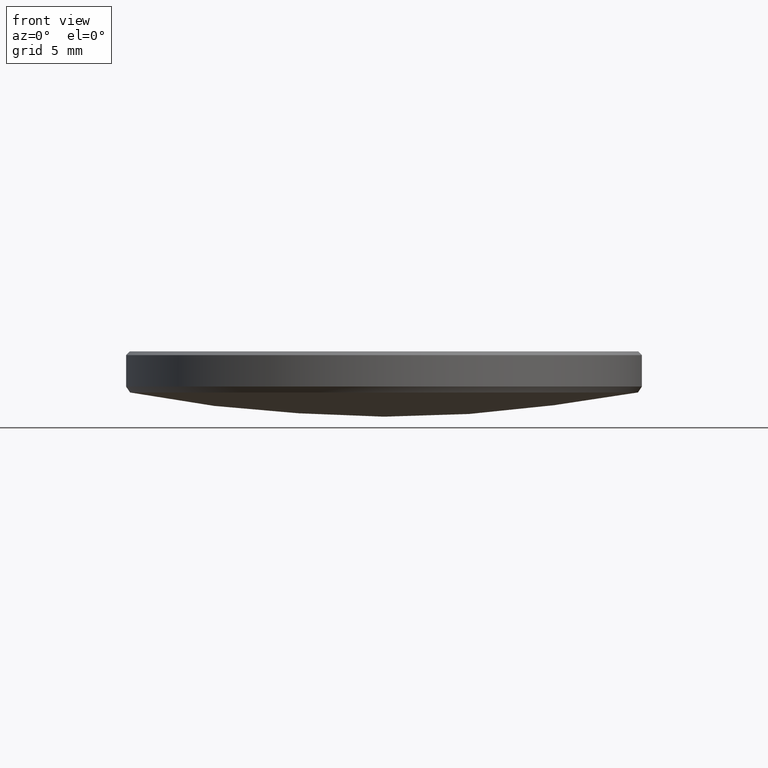
[diagram: clean part render]
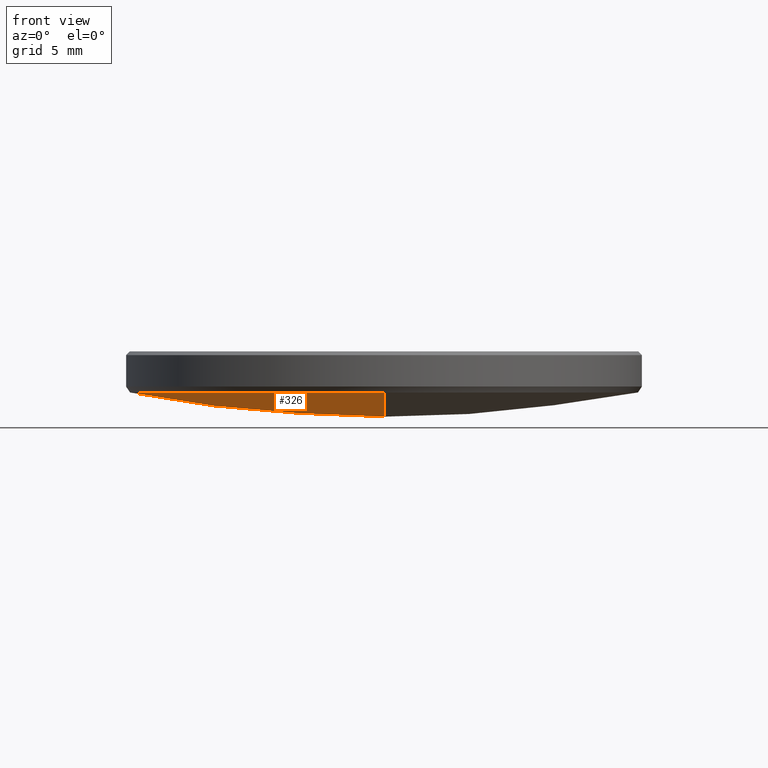
[diagram: same view with one face highlighted and labeled with its STEP entity id]
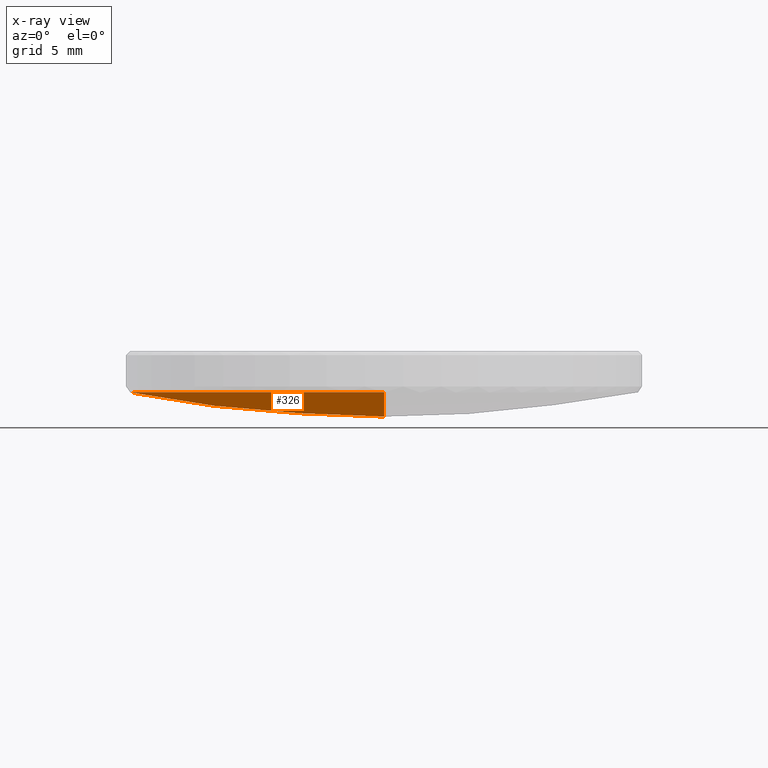
[diagram: x-ray of the same camera — body ghosted, the highlighted face saturated]
A machine part, front view. The second image highlights one B-rep face of the part: STEP entity #326.
The next image is the same camera in x-ray: the body ghosted, the highlighted face saturated — about 0% of this face is hidden behind the body in this view.
In plain terms, the highlighted spherical surface has radius 66.15 mm.
Its self-contained STEP definition (entity closure, byte-faithful):
#5 = CARTESIAN_POINT ( 'NONE',  ( 0.000000000000000000, 12.50395849586554675, 3.961956115965656444 ) ) ;
#8 = VERTEX_POINT ( 'NONE', #5 ) ;
#23 = AXIS2_PLACEMENT_3D ( 'NONE', #91, #191, #273 ) ;
#35 = DIRECTION ( 'NONE',  ( 1.000000000000000000, 0.000000000000000000, 0.000000000000000000 ) ) ;
#47 = AXIS2_PLACEMENT_3D ( 'NONE', #220, #249, #254 ) ;
#67 = FACE_OUTER_BOUND ( 'NONE', #225, .T. ) ;
#72 = ORIENTED_EDGE ( 'NONE', *, *, #103, .F. ) ;
#91 = CARTESIAN_POINT ( 'NONE',  ( 0.000000000000000000, 0.000000000000000000, 68.91943083545942272 ) ) ;
#92 = EDGE_CURVE ( 'NONE', #94, #302, #95, .T. ) ;
#94 = VERTEX_POINT ( 'NONE', #224 ) ;
#95 = CIRCLE ( 'NONE', #47, 66.15000000000000568 ) ;
#103 = EDGE_CURVE ( 'NONE', #94, #8, #283, .T. ) ;
#108 = ORIENTED_EDGE ( 'NONE', *, *, #92, .T. ) ;
#127 = AXIS2_PLACEMENT_3D ( 'NONE', #244, #136, #35 ) ;
#136 = DIRECTION ( 'NONE',  ( 0.000000000000000000, 0.000000000000000000, -1.000000000000000000 ) ) ;
#144 = ORIENTED_EDGE ( 'NONE', *, *, #198, .T. ) ;
#146 = DIRECTION ( 'NONE',  ( 0.000000000000000000, 0.000000000000000000, -1.000000000000000000 ) ) ;
#150 = ORIENTED_EDGE ( 'NONE', *, *, #184, .T. ) ;
#170 = CIRCLE ( 'NONE', #226, 12.50395849586555030 ) ;
#174 = DIRECTION ( 'NONE',  ( 1.000000000000000000, -0.000000000000000000, 0.000000000000000000 ) ) ;
#182 = AXIS2_PLACEMENT_3D ( 'NONE', #305, #174, #146 ) ;
#184 = EDGE_CURVE ( 'NONE', #248, #8, #208, .T. ) ;
#185 = DIRECTION ( 'NONE',  ( 0.000000000000000000, 0.000000000000000000, -1.000000000000000000 ) ) ;
#191 = DIRECTION ( 'NONE',  ( -1.000000000000000000, 0.000000000000000000, 0.000000000000000000 ) ) ;
#193 = CARTESIAN_POINT ( 'NONE',  ( 0.000000000000000000, 0.000000000000000000, 3.961956115965656444 ) ) ;
#198 = EDGE_CURVE ( 'NONE', #302, #248, #170, .T. ) ;
#202 = CARTESIAN_POINT ( 'NONE',  ( -12.50395849586555030, 1.543297354890224221E-15, 3.961956115965656444 ) ) ;
#208 = CIRCLE ( 'NONE', #127, 12.50395849586555030 ) ;
#218 = SPHERICAL_SURFACE ( 'NONE', #23, 66.15000000000000568 ) ;
#220 = CARTESIAN_POINT ( 'NONE',  ( 0.000000000000000000, 0.000000000000000000, 68.91943083545942272 ) ) ;
#224 = CARTESIAN_POINT ( 'NONE',  ( 0.000000000000000000, 4.050519288179870232E-15, 2.769430835459427254 ) ) ;
#225 = EDGE_LOOP ( 'NONE', ( #72, #108, #144, #150 ) ) ;
#226 = AXIS2_PLACEMENT_3D ( 'NONE', #193, #185, #262 ) ;
#244 = CARTESIAN_POINT ( 'NONE',  ( 0.000000000000000000, 0.000000000000000000, 3.961956115965656444 ) ) ;
#248 = VERTEX_POINT ( 'NONE', #202 ) ;
#249 = DIRECTION ( 'NONE',  ( -1.000000000000000000, 1.224646799147353207E-16, 0.000000000000000000 ) ) ;
#254 = DIRECTION ( 'NONE',  ( -1.224646799147352961E-16, -1.000000000000000000, 0.000000000000000000 ) ) ;
#262 = DIRECTION ( 'NONE',  ( 1.000000000000000000, 0.000000000000000000, 0.000000000000000000 ) ) ;
#266 = CARTESIAN_POINT ( 'NONE',  ( -1.531293274863309419E-15, -12.50395849586554675, 3.961956115965656444 ) ) ;
#273 = DIRECTION ( 'NONE',  ( 0.000000000000000000, 1.000000000000000000, 0.000000000000000000 ) ) ;
#283 = CIRCLE ( 'NONE', #182, 66.15000000000000568 ) ;
#302 = VERTEX_POINT ( 'NONE', #266 ) ;
#305 = CARTESIAN_POINT ( 'NONE',  ( 0.000000000000000000, 0.000000000000000000, 68.91943083545942272 ) ) ;
#326 = ADVANCED_FACE ( 'NONE', ( #67 ), #218, .T. ) ;